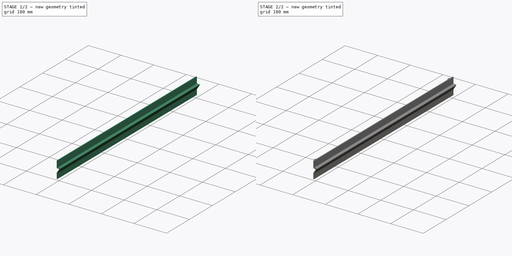
[diagram: build sequence overview — one tinted view per stage of 2, left to right]
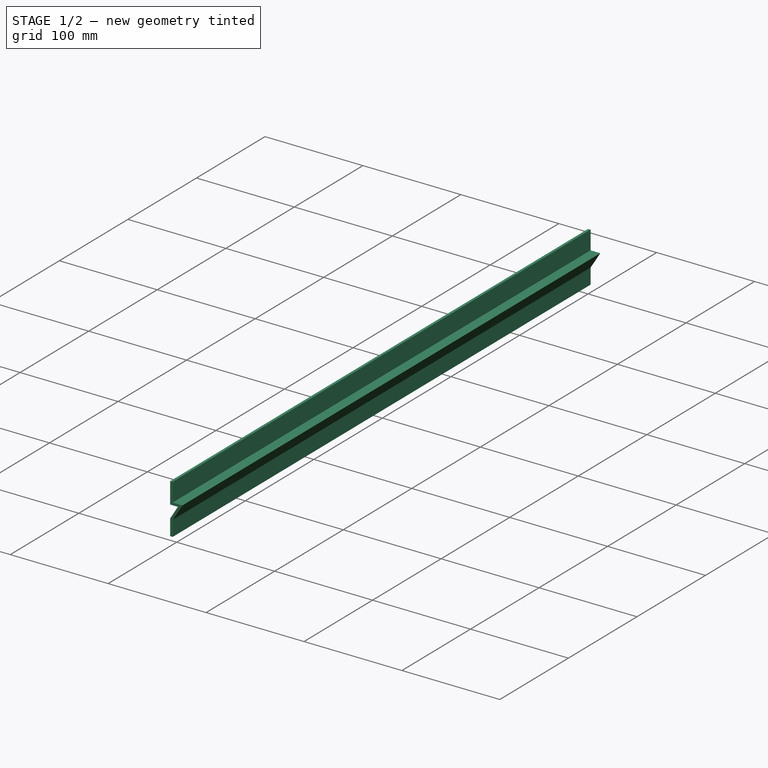
[diagram: stage 1 of 2 — iso view after this stage's code; geometry added in this stage tinted green]
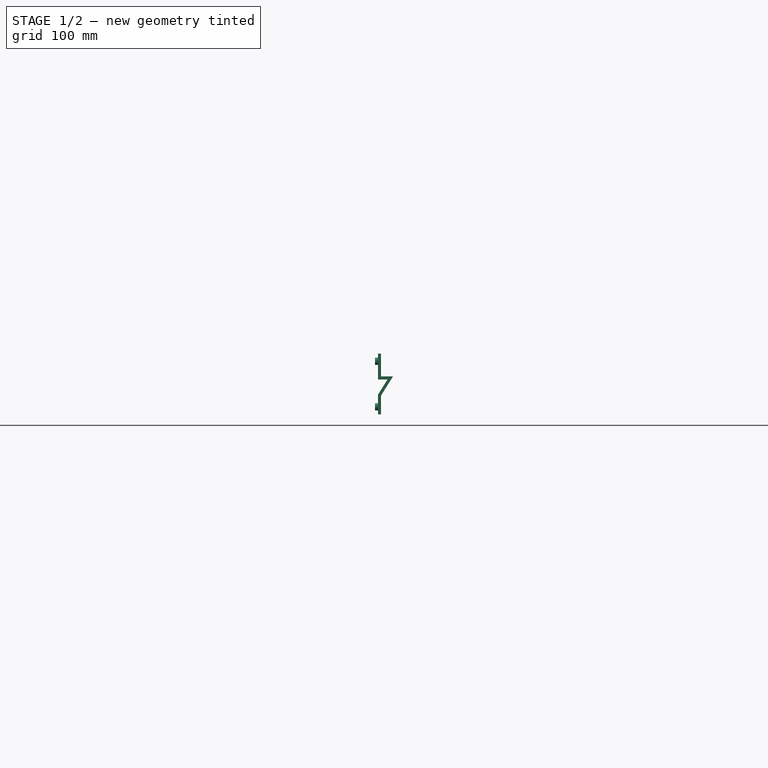
[diagram: stage 1 of 2 — front view after this stage's code; geometry added in this stage tinted green]
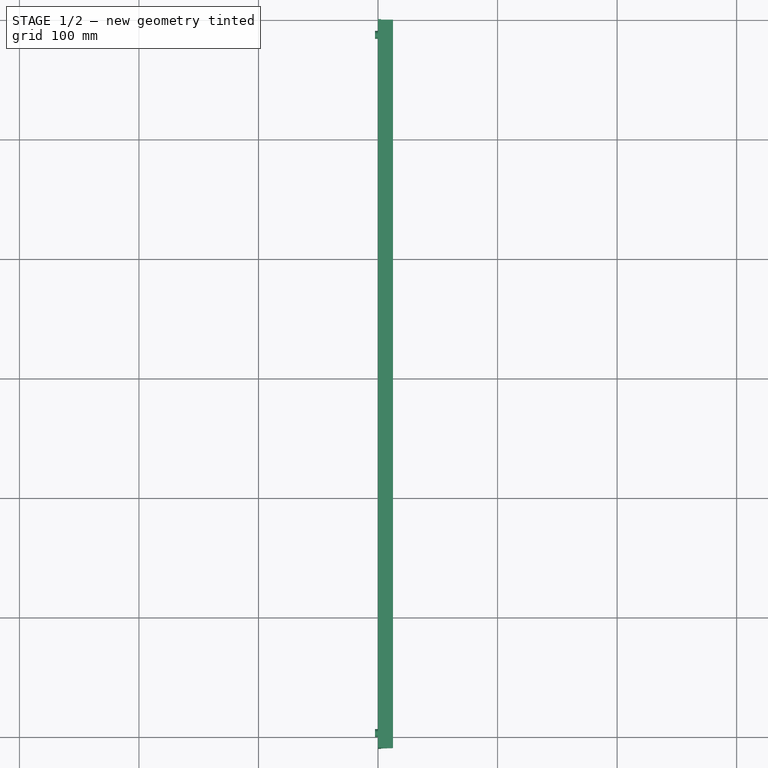
[diagram: stage 1 of 2 — top view after this stage's code; geometry added in this stage tinted green]
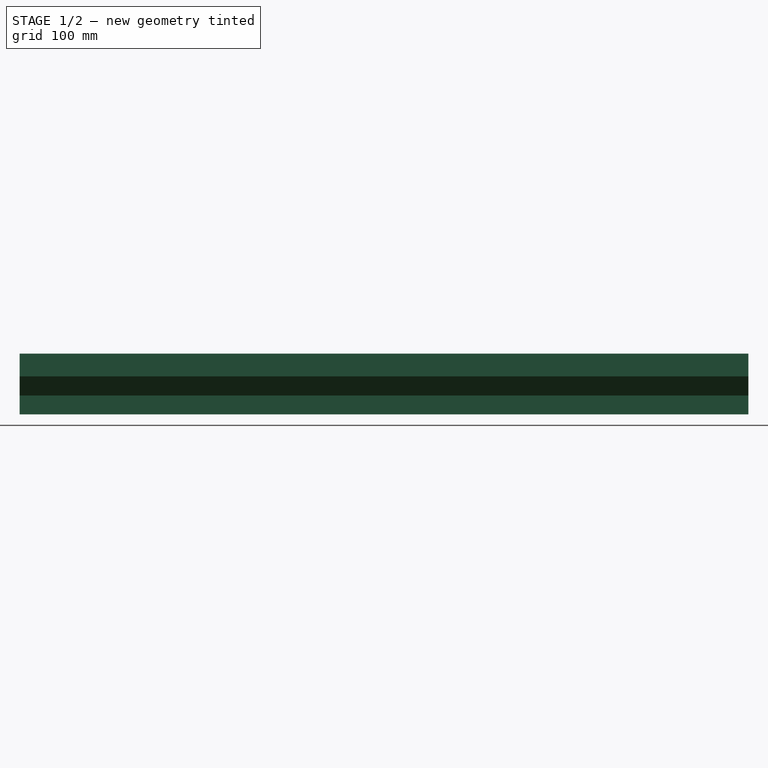
[diagram: stage 1 of 2 — right view after this stage's code; geometry added in this stage tinted green]
FCSTD DOCUMENT  (FreeCAD 0.17R11141 (Git))
Label: horizontal_support_24in
License: All rights reserved
LicenseURL: http://en.wikipedia.org/wiki/All_rights_reserved
objects: Sketcher::SketchObject×3, PartDesign::Pad×3, PartDesign::Fillet×1, PartDesign::Body×1
note: 11 computed .brp shape members not serialized (recipe doc carries the construction recipe); baked Part::Feature solids carry a one-line shape summary decoded from their .brp

FEATURE [Sketcher::SketchObject] Sketch
  MapMode = 5
  Placement = pos=(0,0,0) rot=(1,0,0;1.5708rad)
  Support = -> [XZ_Plane]
  sketch-geometry (12):
    g0: LineSegment StartX=0 StartY=0 StartZ=0 EndX=0 EndY=16.51 EndZ=0
    g1: LineSegment StartX=0 StartY=16.51 StartZ=0 EndX=7.95259 EndY=29.21 EndZ=0
    g2: LineSegment StartX=7.95259 StartY=29.21 StartZ=0 EndX=0 EndY=29.21 EndZ=0
    g3: LineSegment StartX=0 StartY=29.21 StartZ=0 EndX=0 EndY=50.8 EndZ=0
    g4: LineSegment StartX=0 StartY=50.8 StartZ=0 EndX=2.54 EndY=50.8 EndZ=0
    g5: LineSegment StartX=2.54 StartY=50.8 StartZ=0 EndX=2.54 EndY=31.75 EndZ=0
    g6: LineSegment StartX=2.54 StartY=31.75 StartZ=0 EndX=12.54 EndY=31.75 EndZ=0
    g7: LineSegment StartX=12.54 StartY=31.75 StartZ=0 EndX=2.54 EndY=15.7804 EndZ=0
    g8: LineSegment StartX=2.54 StartY=15.7804 StartZ=0 EndX=2.54 EndY=0 EndZ=0
    g9: LineSegment StartX=2.54 StartY=0 StartZ=0 EndX=0 EndY=0 EndZ=0
    g10: LineSegment [constr] StartX=2.54 StartY=31.75 StartZ=0 EndX=2.54 EndY=29.21 EndZ=0
    g11: LineSegment [constr] StartX=7.95259 StartY=29.21 StartZ=0 EndX=10.1054 EndY=27.862 EndZ=0
  constraints (35):
    c: Coincident(g-1,g0)
    c: PointOnObject(g0,g-2)
    c: Coincident(g0,g1)
    c: Coincident(g1,g2)
    c: PointOnObject(g2,g-2)
    c: Horizontal(g2)
    c: Coincident(g2,g3)
    c: PointOnObject(g3,g-2)
    c: Coincident(g3,g4)
    c: Horizontal(g4)
    c: Coincident(g4,g5)
    c: Vertical(g5)
    c: Coincident(g5,g6)
    c: Horizontal(g6)
    c: Coincident(g6,g7)
    c: Coincident(g7,g8)
    c: PointOnObject(g8,g-1)
    c: Vertical(g8)
    c: Coincident(g8,g9)
    c: Coincident(g9,g0)
    c: Parallel(g1,g7)
    c: Coincident(g10,g5)
    c: PointOnObject(g10,g2)
    c: Vertical(g10)
    c: Coincident(g11,g1)
    c: PointOnObject(g11,g7)
    c: Perpendicular(g7,g11)
    c: Equal(g4,g10)
    c: Equal(g10,g11)
    c: Equal(g11,g9)
    c: DistanceY(g5,g5) = 19.05
    c: DistanceX(g6,g6) = 10
    c: DistanceX(g4,g4) = 2.54
    c: DistanceY(g0,g2) = 12.7
    c: DistanceY(g-1,g3) = 50.8
FEATURE [PartDesign::Pad] Pad
  Length = 609.6
  Length2 = 100
  Placement = pos=(0,0,0) rot=(1,0,0;1.5708rad)
  Profile = -> Sketch
  Type = 0
FEATURE [Sketcher::SketchObject] Sketch001
  ExternalGeometry = -> [Pad]
  MapMode = 5
  Placement = pos=(0,0,0) rot=(0.707107,0,-0.707107;3.14159rad)
  Support = -> [Pad]
  sketch-geometry (10):
    g0: LineSegment [constr] StartX=-50.8 StartY=0 StartZ=0 EndX=-44.45 EndY=12.7 EndZ=0
    g1: LineSegment [constr] StartX=-44.45 StartY=12.7 StartZ=0 EndX=-6.35 EndY=12.7 EndZ=0
    g2: LineSegment [constr] StartX=-6.35 StartY=12.7 StartZ=0 EndX=0 EndY=0 EndZ=0
    g3: Circle CenterX=-44.45 CenterY=12.7 CenterZ=0 NormalX=0 NormalY=0 NormalZ=1 Radius=3
    g4: Circle CenterX=-6.35 CenterY=12.7 CenterZ=0 NormalX=0 NormalY=0 NormalZ=1 Radius=3
    g5: LineSegment [constr] StartX=-50.8 StartY=609.6 StartZ=0 EndX=-44.45 EndY=596.9 EndZ=0
    g6: LineSegment [constr] StartX=-44.45 StartY=596.9 StartZ=0 EndX=-6.35 EndY=596.9 EndZ=0
    g7: LineSegment [constr] StartX=-6.35 StartY=596.9 StartZ=0 EndX=0 EndY=609.6 EndZ=0
    g8: Circle CenterX=-44.45 CenterY=596.9 CenterZ=0 NormalX=0 NormalY=0 NormalZ=1 Radius=3
    g9: Circle CenterX=-6.35 CenterY=596.9 CenterZ=0 NormalX=0 NormalY=0 NormalZ=1 Radius=3
  constraints (24):
    c: Coincident(g-3,g0)
    c: Coincident(g0,g1)
    c: Horizontal(g1)
    c: Coincident(g1,g2)
    c: Coincident(g2,g-1)
    c: Equal(g2,g0)
    c: DistanceY(g0,g0) = 12.7
    c: DistanceX(g1,g1) = 38.1
    c: Coincident(g3,g0)
    c: Coincident(g4,g1)
    c: Coincident(g-5,g5)
    c: Coincident(g5,g6)
    c: Horizontal(g6)
    c: Coincident(g6,g7)
    c: Coincident(g7,g-4)
    c: Equal(g7,g5)
    c: DistanceY(g5,g5) = 12.7
    c: DistanceX(g6,g6) = 38.1
    c: Coincident(g8,g5)
    c: Coincident(g9,g6)
    c: Equal(g9,g8)
    c: Equal(g8,g4)
    c: Equal(g4,g3)
    c: Radius(g4) = 3
FEATURE [PartDesign::Pad] Pad001
  BaseFeature = -> Pad
  Length = 2.54
  Length2 = 100
  Placement = pos=(0,0,0) rot=(1,0,0;1.5708rad)
  Profile = -> Sketch001
  Type = 0
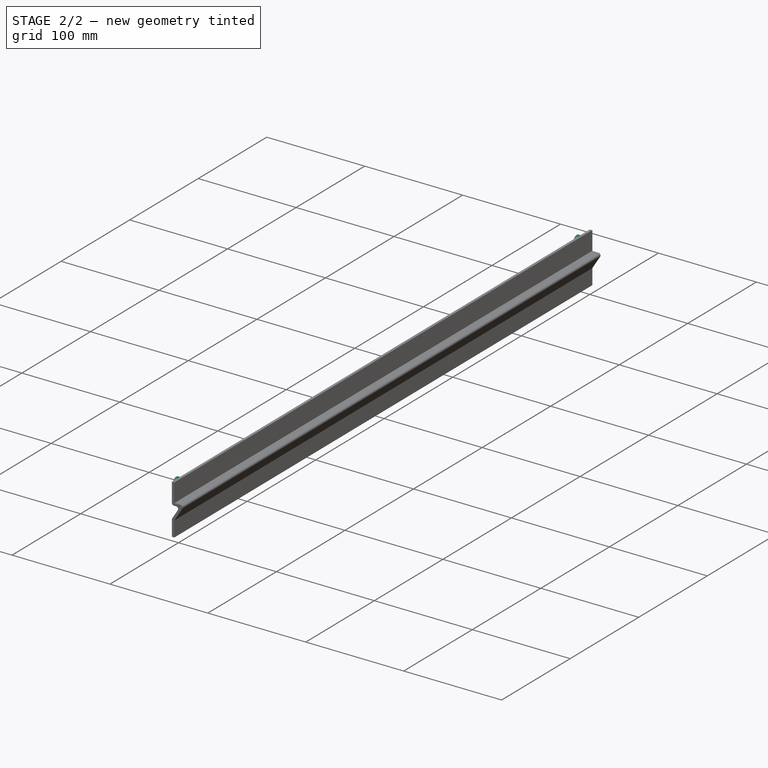
[diagram: stage 2 of 2 — iso view after this stage's code; geometry added in this stage tinted green]
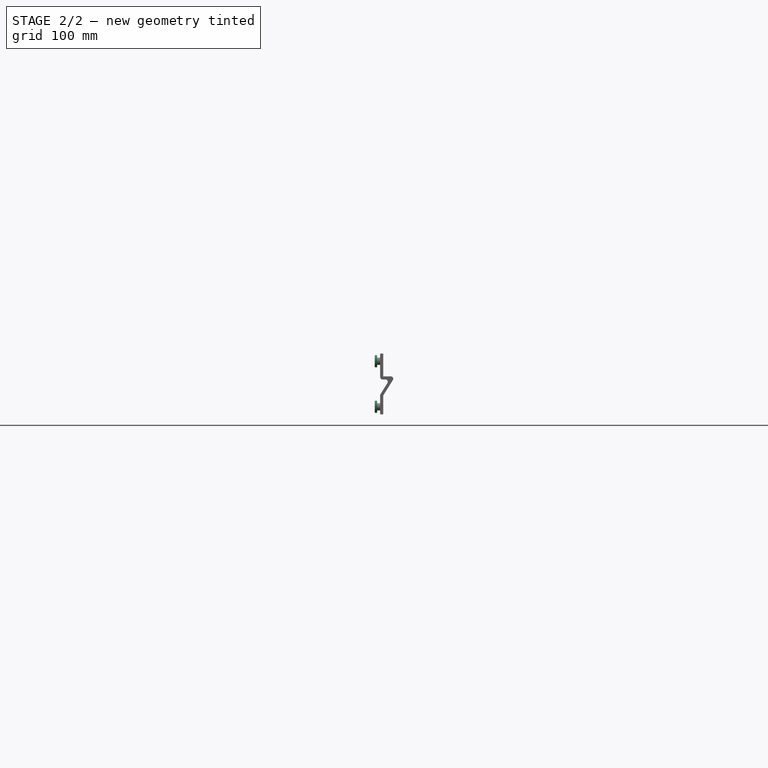
[diagram: stage 2 of 2 — front view after this stage's code; geometry added in this stage tinted green]
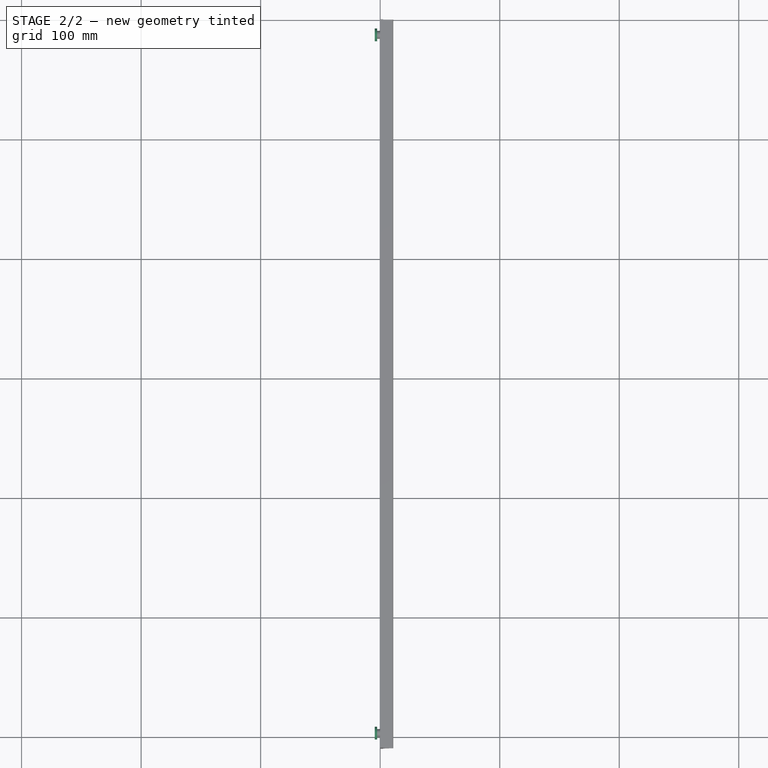
[diagram: stage 2 of 2 — top view after this stage's code; geometry added in this stage tinted green]
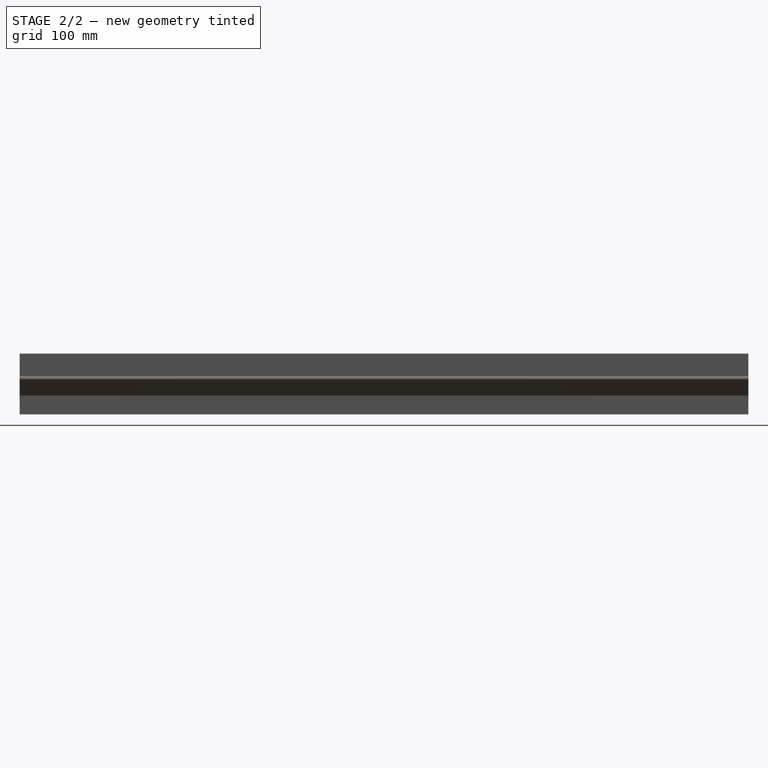
[diagram: stage 2 of 2 — right view after this stage's code; geometry added in this stage tinted green]
FEATURE [Sketcher::SketchObject] Sketch002
  ExternalGeometry = -> [Pad001]
  MapMode = 5
  Placement = pos=(-2.54,0,0) rot=(0.707107,0,-0.707107;3.14159rad)
  Support = -> [Pad001]
  sketch-geometry (4):
    g0: Circle CenterX=-44.45 CenterY=12.7 CenterZ=0 NormalX=0 NormalY=0 NormalZ=1 Radius=5
    g1: Circle CenterX=-6.35 CenterY=596.9 CenterZ=0 NormalX=0 NormalY=0 NormalZ=1 Radius=5
    g2: Circle CenterX=-44.45 CenterY=596.9 CenterZ=0 NormalX=0 NormalY=0 NormalZ=1 Radius=5
    g3: Circle CenterX=-6.35 CenterY=12.7 CenterZ=0 NormalX=0 NormalY=0 NormalZ=1 Radius=5
  constraints (8):
    c: Coincident(g0,g-4)
    c: Coincident(g1,g-3)
    c: Coincident(g2,g-6)
    c: Coincident(g3,g-5)
    c: Equal(g3,g2)
    c: Equal(g2,g0)
    c: Equal(g0,g1)
    c: Radius(g3) = 5
FEATURE [PartDesign::Pad] Pad002
  BaseFeature = -> Pad001
  Length = 2
  Length2 = 100
  Placement = pos=(0,0,0) rot=(1,0,0;1.5708rad)
  Profile = -> Sketch002
  Type = 0
FEATURE [PartDesign::Fillet] Fillet
  Base = -> Pad002 [Edge33,Edge10,Edge27,Edge28]
  BaseFeature = -> Pad002
  Placement = pos=(0,0,0) rot=(1,0,0;1.5708rad)
  Radius = 2
FEATURE [PartDesign::Body] Body
  Group = -> [Sketch,Pad,Sketch001,Pad001,Sketch002,Pad002,Fillet]
  Origin = -> BodyOrigin
  Tip = -> Fillet
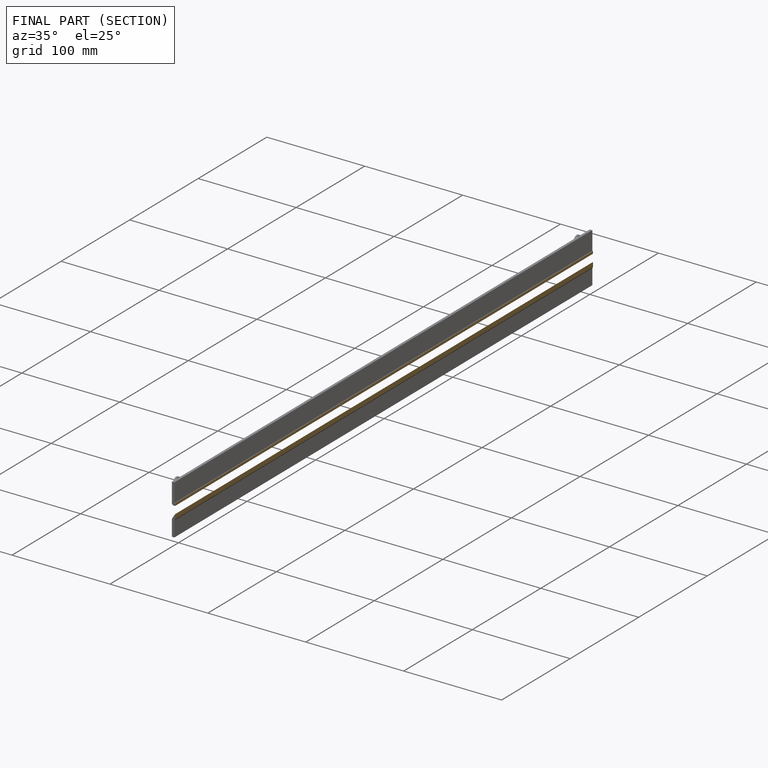
[diagram: finished part — half-section view (interior)]
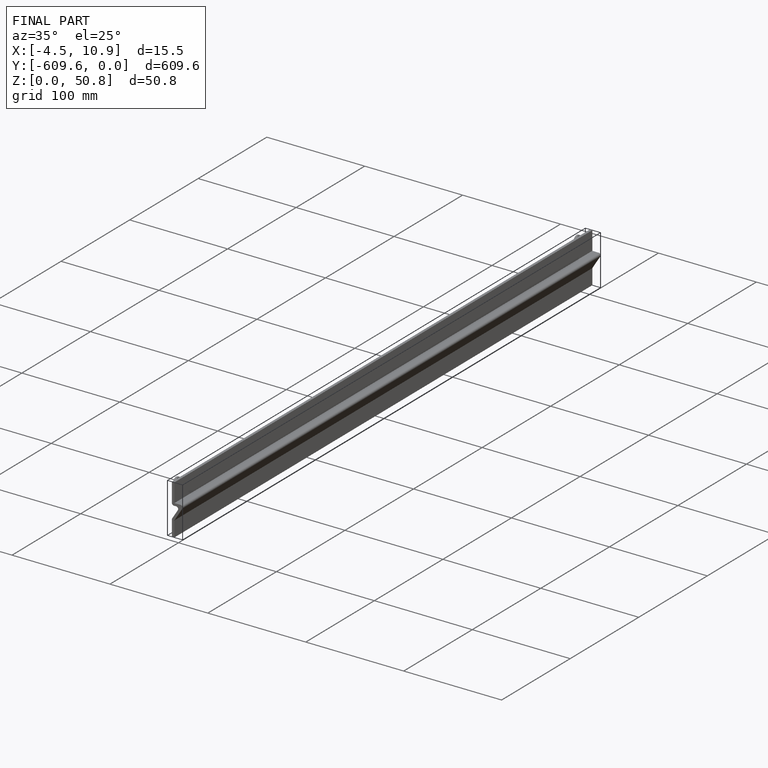
[diagram: finished part — iso view with bounding-box wireframe]
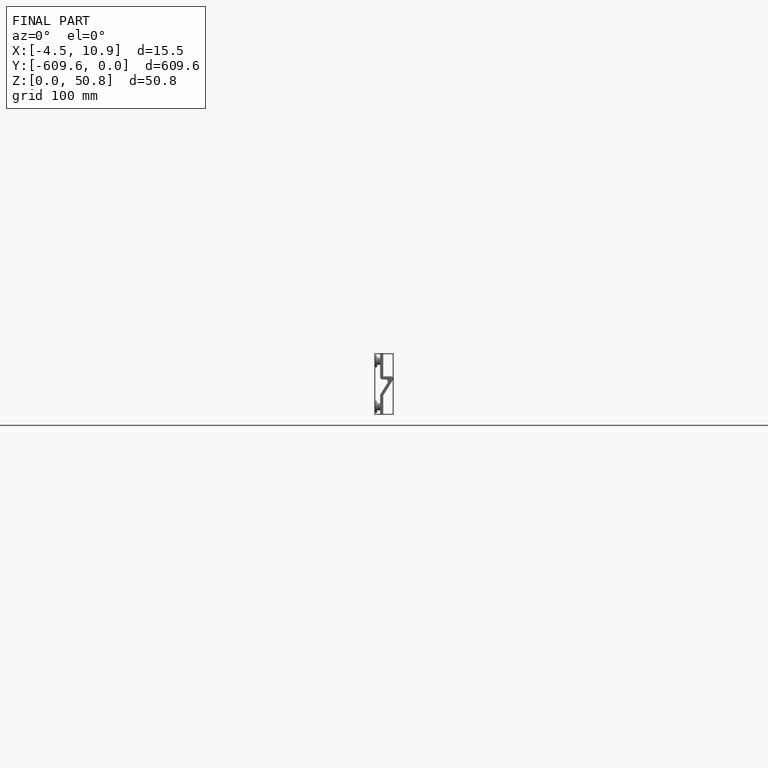
[diagram: finished part — front view with bounding-box wireframe]
